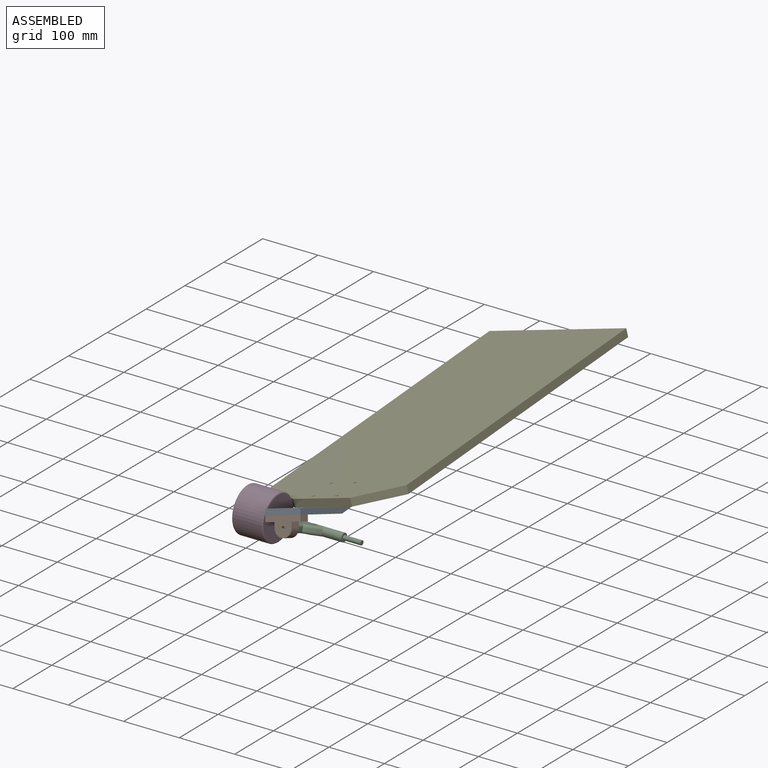
[diagram: assembled view]
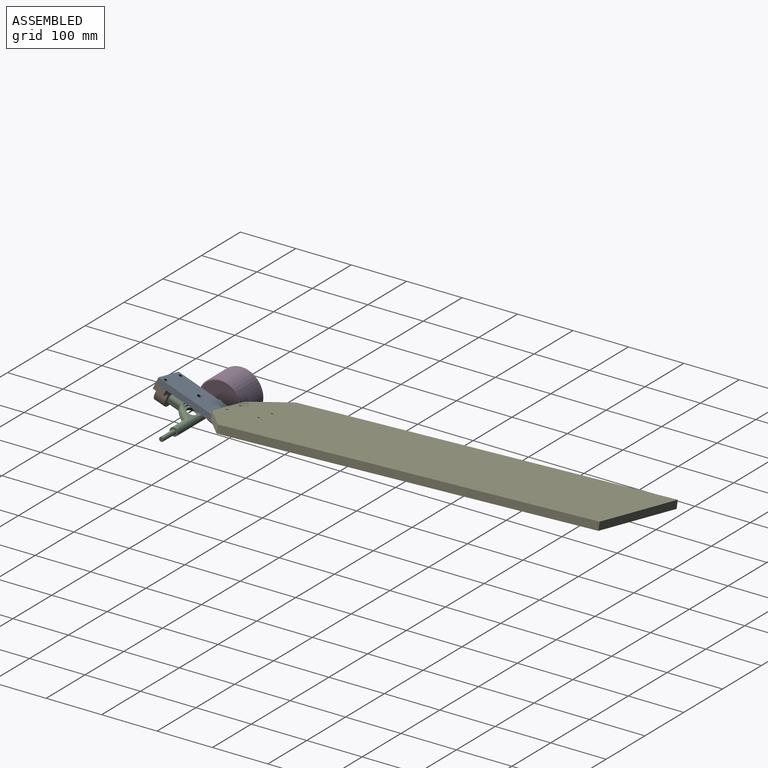
[diagram: assembled view, second angle]
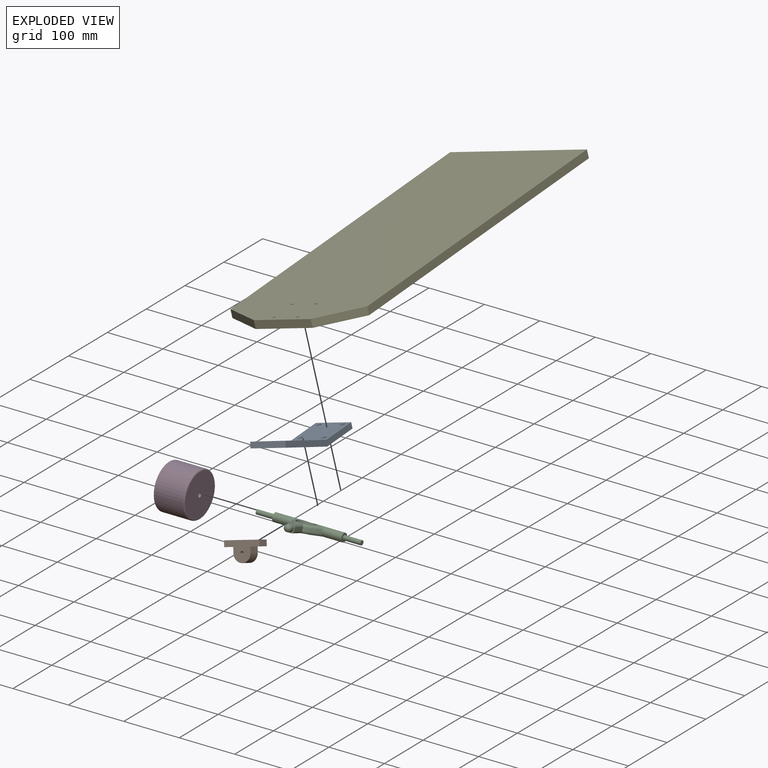
[diagram: exploded view]
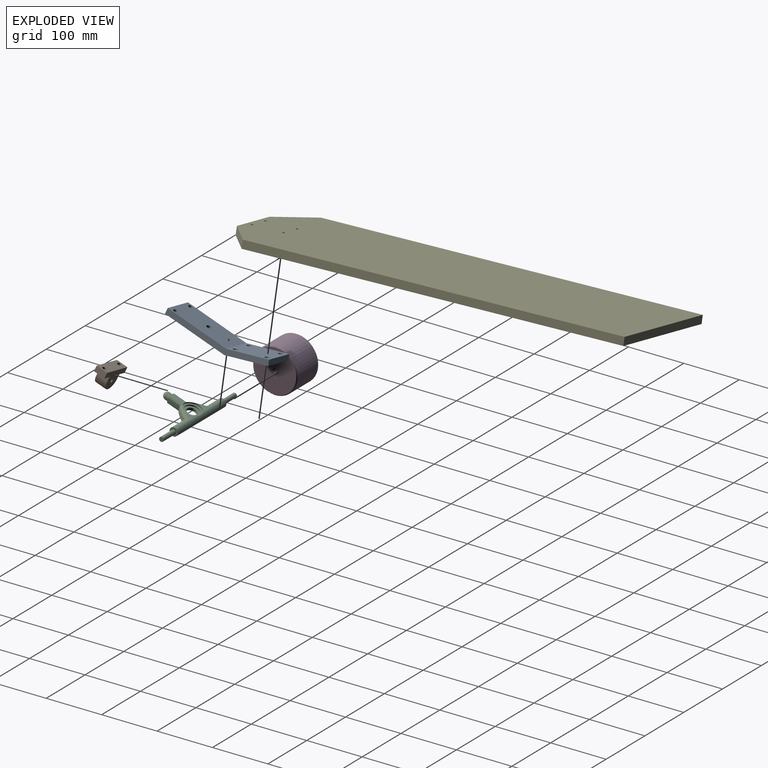
[diagram: exploded view, second angle]
ASSEMBLY  parts=5 mates=4
PART A: 15 faces, bbox 181.9x48.3x62 mm
  f0: plane 62x10mm, normal (-1,0,0), area 620mm2, adj f2,f3,f5,f7
  f1: plane 62x9.4mm, normal (0.94,0.34,0), area 620mm2, adj f4,f5,f6,f7
  f2: plane 73.12x62mm, normal (0,1,0), area 4332.3mm2, adj f0,f5,f6,f7,f11,f12,f13,f14
  f3: plane 74.88x62mm, normal (0,-1,0), area 4441.6mm2, adj f0,f4,f5,f7,f11,f12,f13,f14
  f4: plane 107.01x62mm, normal (0.34,-0.94,0), area 6888.9mm2, adj f1,f3,f5,f7,f8,f9,f10
  f5: plane 181.9x48.35mm, normal (0,0,-1), area 1870mm2, adj f0,f1,f2,f3,f4,f6
  f6: plane 105.36x62mm, normal (-0.34,0.94,0), area 6779.6mm2, adj f1,f2,f5,f7,f8,f9,f10
  f7: plane 181.9x48.35mm, normal (0,0,1), area 1870mm2, adj f0,f1,f2,f3,f4,f6
  f8: cylinder r=4mm len=12.13mm, axis (-0.34,0.94,0), area 251.3mm2, adj f4,f6
  f9: cylinder r=4mm len=12.13mm, axis (-0.34,0.94,0), area 251.3mm2, adj f4,f6
  f10: cylinder r=4.76mm len=12.65mm, axis (-0.34,0.94,0), area 299.2mm2, adj f4,f6
  f11: cylinder r=4mm len=10mm, axis (0,1,0), area 251.3mm2, adj f2,f3
  f12: cylinder r=4mm len=10mm, axis (0,1,0), area 251.3mm2, adj f2,f3
  f13: cylinder r=4mm len=10mm, axis (0,1,0), area 251.3mm2, adj f2,f3
  f14: cylinder r=4mm len=10mm, axis (0,1,0), area 251.3mm2, adj f2,f3
PART B: 13 faces, bbox 62x34.2x20 mm
  f0: plane 20x9.2mm, normal (1,0,0), area 184mm2, adj f1,f7,f8,f9
  f1: cylinder r=15mm len=30mm, axis (0,0,1), area 942.5mm2, adj f0,f2,f8,f9
  f2: plane 20x9.2mm, normal (-1,0,0), area 184mm2, adj f1,f3,f8,f9
  f3: plane 20x16mm, normal (0,1,0), area 269.7mm2, adj f2,f4,f8,f9,f12
  f4: plane 20x10mm, normal (-1,0,0), area 200mm2, adj f3,f5,f8,f9
  f5: plane 62x20mm, normal (0,-1,0), area 1139.5mm2, adj f4,f6,f8,f9,f11,f12
  f6: plane 20x10mm, normal (1,0,0), area 200mm2, adj f5,f7,f8,f9
  f7: plane 20x16mm, normal (0,1,0), area 269.7mm2, adj f0,f6,f8,f9,f11
  f8: plane 62x34.2mm, normal (0,0,-1), area 1221.2mm2, adj f0,f1,f2,f3,f4,f5,f6,f7
  f9: plane 62x34.2mm, normal (0,0,1), area 1221.2mm2, adj f0,f1,f2,f3,f4,f5,f6,f7
  f10: cylinder r=3mm len=20mm, axis (0,0,1), area 377mm2, adj f8,f9
  f11: cylinder r=4mm len=10mm, axis (0,1,0), area 251.3mm2, adj f5,f7
  f12: cylinder r=4mm len=10mm, axis (0,1,0), area 251.3mm2, adj f3,f5
PART C: 37 faces, bbox 189x72.7x15 mm
  f0: plane 23.95x5mm, normal (0,0,-1), area 119.1mm2, adj f8,f13,f33,f34
  f1: plane 15.83x15.6mm, normal (0,0,-1), area 100.7mm2, adj f13,f26,f30
  f2: plane 15.83x15.6mm, normal (0,0,1), area 100.7mm2, adj f5,f26,f27
  f3: plane 15.83x15.6mm, normal (0,0,1), area 100.7mm2, adj f5,f26,f28
  f4: cylinder r=12.7mm len=25.4mm, axis (0,0,1), area 199.5mm2, adj f18,f21
  f5: cylinder r=16mm len=32mm, axis (0,0,1), area 238.7mm2, adj f2,f3,f15,f18,f26,f27,f28,f31
  f6: extruded ~23.33x19.8mm, area 153.3mm2, adj f7,f26,f28,f30
  f7: plane 22.05x5mm, normal (-1,0,0), area 110.2mm2, adj f6,f8,f31,f34
  f8: plane 15x15mm, normal (0,1,0), area 75.9mm2, adj f0,f7,f9,f15,f31,f32,f33,f34
  f9: plane 22.05x5mm, normal (1,0,0), area 110.2mm2, adj f8,f10,f32,f33
  f10: extruded ~23.33x19.8mm, area 153.3mm2, adj f9,f26,f27,f29
  f11: plane 15x15mm, normal (1,0,0), area 126.4mm2, adj f22,f26
  f12: plane 15x15mm, normal (-1,0,0), area 126.4mm2, adj f24,f26
  f13: cylinder r=16mm len=32mm, axis (0,0,1), area 238.7mm2, adj f0,f1,f14,f17,f26,f29,f30,f33
  f14: plane 15.83x15.6mm, normal (0,0,-1), area 100.7mm2, adj f13,f26,f29
  f15: plane 23.95x5mm, normal (0,0,1), area 119.1mm2, adj f5,f8,f31,f32
  f16: cylinder r=12.7mm len=25.4mm, axis (0,0,1), area 199.5mm2, adj f17,f20
  f17: plane 32x32mm, normal (0,0,-1), area 297.5mm2, adj f13,f16
  f18: plane 32x32mm, normal (0,0,1), area 297.5mm2, adj f4,f5
  f19: cylinder r=8.7mm len=17.4mm, axis (0,0,1), area 273.3mm2, adj f20,f21
  f20: plane 25.4x25.4mm, normal (0,0,-1), area 268.9mm2, adj f16,f19
  f21: plane 25.4x25.4mm, normal (0,0,1), area 268.9mm2, adj f4,f19
  f22: cylinder r=4mm len=32mm, axis (-1,0,0), area 804.2mm2, adj f11,f23
  f23: plane 8x8mm, normal (1,0,0), area 50.3mm2, adj f22
  f24: cylinder r=4mm len=32mm, axis (1,0,0), area 804.2mm2, adj f12,f25
  f25: plane 8x8mm, normal (-1,0,0), area 50.3mm2, adj f24
  f26: cylinder r=7.5mm len=125mm, axis (-1,0,0), area 4547.8mm2, adj f1,f2,f3,f5,f6,f10,f11,f12
  f27: bspline ~33.58x28.28mm, area 253.3mm2, adj f2,f5,f10,f26,f32
  f28: bspline ~33.58x28.28mm, area 253.3mm2, adj f3,f5,f6,f26,f31
  f29: bspline ~33.58x28.28mm, area 253.3mm2, adj f10,f13,f14,f26,f33
  f30: bspline ~33.58x28.28mm, area 253.3mm2, adj f1,f6,f13,f26,f34
  f31: cylinder r=5mm len=24.25mm, axis (0,1,0), area 183.2mm2, adj f5,f7,f8,f15,f28
  f32: cylinder r=5mm len=24.25mm, axis (0,-1,0), area 183.2mm2, adj f5,f8,f9,f15,f27
  f33: cylinder r=5mm len=24.25mm, axis (0,1,0), area 183.2mm2, adj f0,f8,f9,f13,f29
  f34: cylinder r=5mm len=24.25mm, axis (0,-1,0), area 183.2mm2, adj f0,f7,f8,f13,f30
  f35: cylinder r=6.38mm len=12.75mm, axis (0,-1,0), area 255.4mm2, adj f8,f36
  f36: sphere r=6.38mm, area 255.4mm2, adj f35
PART D: 6 faces, bbox 86.6x86.6x56 mm
  f0: cylinder r=40mm len=80mm, axis (0,0,-1), area 13069mm2, adj f4,f5
  f1: plane 76x76mm, normal (0,0,1), area 4486.2mm2, adj f3,f5
  f2: plane 76x76mm, normal (0,0,-1), area 4486.2mm2, adj f3,f4
  f3: cylinder r=4mm len=56mm, axis (0,0,-1), area 1407.4mm2, adj f1,f2
  f4: torus R=38mm, axis (0,0,1), area 775.2mm2, adj f0,f2
  f5: torus R=38mm, axis (0,0,1), area 775.2mm2, adj f0,f1
PART E: 12 faces, bbox 700x240x14 mm
  f0: plane 100x14mm, normal (-1,0,0), area 1400mm2, adj f1,f5,f6,f7
  f1: plane 70x49.01mm, normal (-0.82,-0.57,0), area 1196.4mm2, adj f0,f2,f6,f7
  f2: plane 650.99x14mm, normal (0,-1,0), area 9113.8mm2, adj f1,f3,f6,f7
  f3: plane 240x14mm, normal (1,0,0), area 3360mm2, adj f2,f4,f6,f7
  f4: plane 650.99x14mm, normal (0,1,0), area 9113.8mm2, adj f3,f5,f6,f7
  f5: plane 70x49.01mm, normal (-0.82,0.57,0), area 1196.4mm2, adj f0,f4,f6,f7
  f6: plane 700x240mm, normal (0,0,1), area 164482.4mm2, adj f0,f1,f2,f3,f4,f5,f8,f9
  f7: plane 700x240mm, normal (0,0,-1), area 164482.4mm2, adj f0,f1,f2,f3,f4,f5,f8,f9
  f8: cylinder r=2.62mm len=14mm, axis (0,0,-1), area 230.9mm2, adj f6,f7
  f9: cylinder r=2.62mm len=14mm, axis (0,0,-1), area 230.9mm2, adj f6,f7
  f10: cylinder r=2.62mm len=14mm, axis (0,0,-1), area 230.9mm2, adj f6,f7
  f11: cylinder r=2.62mm len=14mm, axis (0,0,-1), area 230.9mm2, adj f6,f7
PLACE A rot(axis=(0.65,-0.6,-0.46),125.6deg) t=(7.26,-81.34,-56.98)mm
PLACE B rot(axis=(-0.99,-0.13,-0.09),110.7deg) t=(-2.47,-67.2,-23.5)mm
PLACE C rot(axis=(1,0,0),160deg) t=(-2.47,-29.85,-37.1)mm fixed
PLACE D rot(axis=(0.57,-0.6,-0.57),118.4deg) t=(-58.97,-17.91,-41.44)mm
PLACE E rot(axis=(-0.12,-0.12,0.99),95.9deg) t=(-41.01,377.61,-32.34)mm
MATE fastened A.f12 <-> E.f9  axis (-0.24,-0.01,0.97) through (-35.62,90.93,-34.23)mm
MATE revolute C.f35 <-> B.f1  axis (0,-0.94,0.34) through (-2.47,-67.2,-23.5)mm
MATE revolute D.f0 <-> C.f22  axis (1,0,0) through (-114.97,-17.91,-41.44)mm
MATE fastened A.f9 <-> B.f12  axis (0.26,-0.33,-0.91) through (-29.65,-72.29,-8.25)mm
